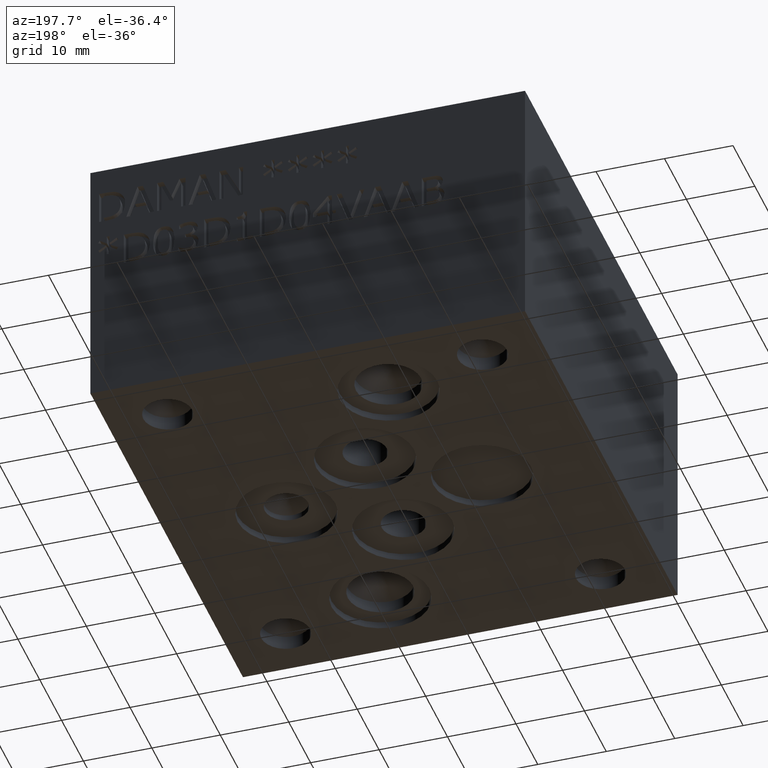
[diagram: clean part render]
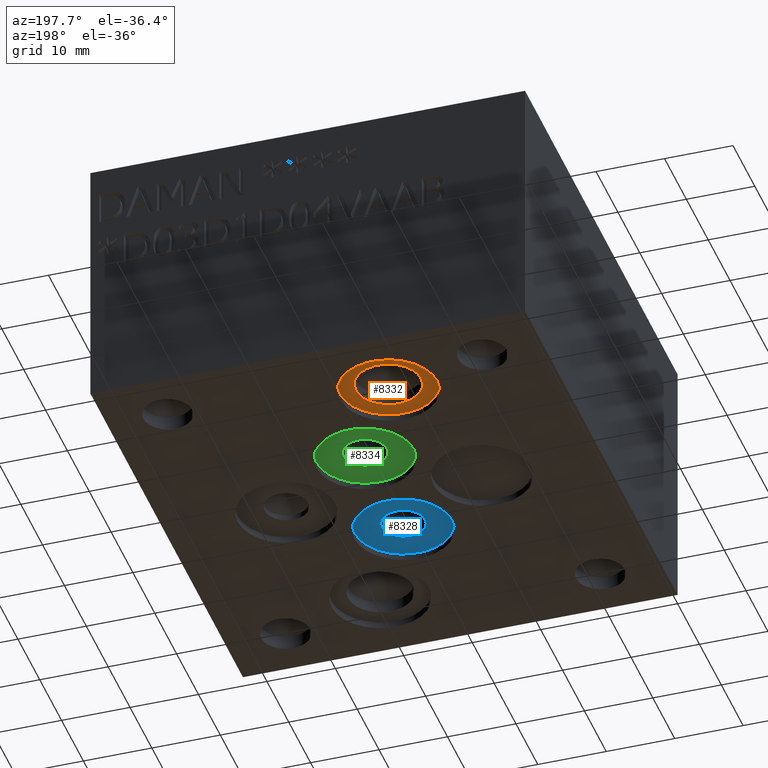
[diagram: same view with three faces highlighted in distinct colors, each labeled with its STEP entity id]
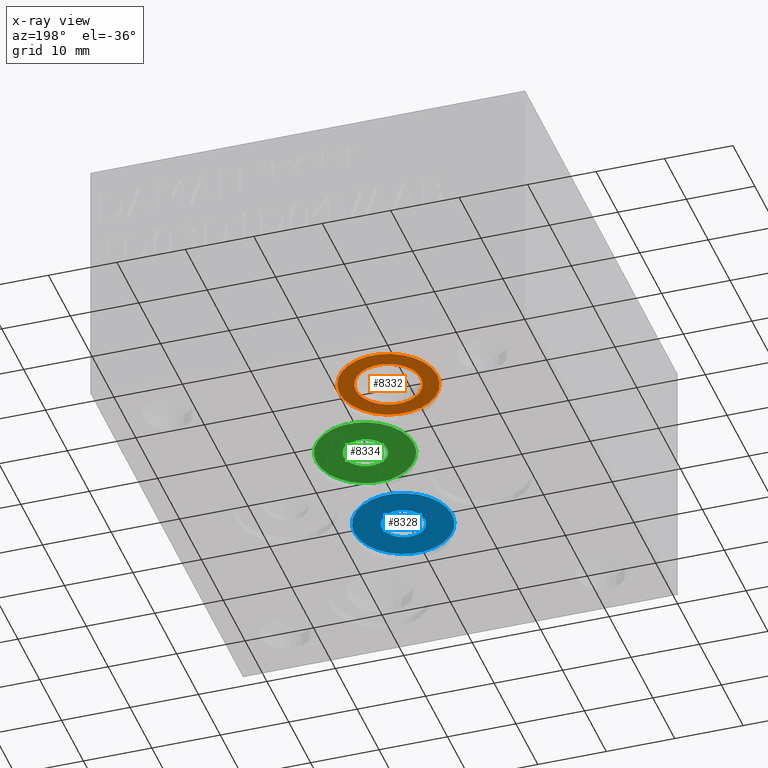
[diagram: x-ray of the same camera — body ghosted, the three highlighted faces saturated]
A machine part, auxiliary view with three faces highlighted in distinct colors.
The next image is the same camera in x-ray (body ghosted, the three faces saturated) — at least one of them is partly hidden behind the body in this view.
Their STEP definitions:

[orange] entity #8332 — the highlighted planar face has unit normal (0, 0, -1).
#44=CIRCLE('',#8693,7.1374);
#45=CIRCLE('',#8694,7.1374);
#46=CIRCLE('',#8696,4.7625);
#495=FACE_BOUND('',#1349,.T.);
#887=FACE_OUTER_BOUND('',#1348,.T.);
#1348=EDGE_LOOP('',(#7001,#7002));
#1349=EDGE_LOOP('',(#7003));
#3785=VERTEX_POINT('',#13788);
#3786=VERTEX_POINT('',#13790);
#3787=VERTEX_POINT('',#13794);
#4894=EDGE_CURVE('',#3786,#3785,#44,.T.);
#4895=EDGE_CURVE('',#3785,#3786,#45,.T.);
#4896=EDGE_CURVE('',#3787,#3787,#46,.T.);
#7001=ORIENTED_EDGE('',*,*,#4894,.T.);
#7002=ORIENTED_EDGE('',*,*,#4895,.T.);
#7003=ORIENTED_EDGE('',*,*,#4896,.F.);
#7615=PLANE('',#8695);
#8332=ADVANCED_FACE('',(#887,#495),#7615,.T.);
#8693=AXIS2_PLACEMENT_3D('',#13791,#10217,#10218);
#8694=AXIS2_PLACEMENT_3D('',#13792,#10219,#10220);
#8695=AXIS2_PLACEMENT_3D('',#13793,#10221,#10222);
#8696=AXIS2_PLACEMENT_3D('',#13795,#10223,#10224);
#10217=DIRECTION('center_axis',(0.,0.,-1.));
#10218=DIRECTION('ref_axis',(1.,0.,0.));
#10219=DIRECTION('center_axis',(0.,0.,-1.));
#10220=DIRECTION('ref_axis',(1.,0.,0.));
#10221=DIRECTION('center_axis',(0.,0.,-1.));
#10222=DIRECTION('ref_axis',(1.,0.,0.));
#10223=DIRECTION('center_axis',(0.,0.,-1.));
#10224=DIRECTION('ref_axis',(1.,0.,0.));
#13788=CARTESIAN_POINT('',(16.6116,57.9628,1.016));
#13790=CARTESIAN_POINT('',(30.8864,57.9628,1.016));
#13791=CARTESIAN_POINT('Origin',(23.749,57.9628,1.016));
#13792=CARTESIAN_POINT('Origin',(23.749,57.9628,1.016));
#13793=CARTESIAN_POINT('Origin',(23.749,57.9628,1.016));
#13794=CARTESIAN_POINT('',(18.9865,57.9628,1.016));
#13795=CARTESIAN_POINT('Origin',(23.749,57.9628,1.016));

[blue] entity #8328 — the highlighted planar face has unit normal (0, 0, -1).
#34=CIRCLE('',#8679,7.1374);
#35=CIRCLE('',#8680,7.1374);
#36=CIRCLE('',#8682,3.175);
#493=FACE_BOUND('',#1343,.T.);
#883=FACE_OUTER_BOUND('',#1342,.T.);
#1342=EDGE_LOOP('',(#6983,#6984));
#1343=EDGE_LOOP('',(#6985));
#3775=VERTEX_POINT('',#13762);
#3776=VERTEX_POINT('',#13764);
#3777=VERTEX_POINT('',#13768);
#4882=EDGE_CURVE('',#3776,#3775,#34,.T.);
#4883=EDGE_CURVE('',#3775,#3776,#35,.T.);
#4884=EDGE_CURVE('',#3777,#3777,#36,.T.);
#6983=ORIENTED_EDGE('',*,*,#4882,.T.);
#6984=ORIENTED_EDGE('',*,*,#4883,.T.);
#6985=ORIENTED_EDGE('',*,*,#4884,.F.);
#7613=PLANE('',#8681);
#8328=ADVANCED_FACE('',(#883,#493),#7613,.T.);
#8679=AXIS2_PLACEMENT_3D('',#13765,#10187,#10188);
#8680=AXIS2_PLACEMENT_3D('',#13766,#10189,#10190);
#8681=AXIS2_PLACEMENT_3D('',#13767,#10191,#10192);
#8682=AXIS2_PLACEMENT_3D('',#13769,#10193,#10194);
#10187=DIRECTION('center_axis',(0.,0.,-1.));
#10188=DIRECTION('ref_axis',(1.,0.,0.));
#10189=DIRECTION('center_axis',(0.,0.,-1.));
#10190=DIRECTION('ref_axis',(1.,0.,0.));
#10191=DIRECTION('center_axis',(0.,0.,-1.));
#10192=DIRECTION('ref_axis',(1.,0.,0.));
#10193=DIRECTION('center_axis',(0.,0.,-1.));
#10194=DIRECTION('ref_axis',(1.,0.,0.));
#13762=CARTESIAN_POINT('',(24.5872,26.2128,1.016));
#13764=CARTESIAN_POINT('',(38.862,26.2128,1.016));
#13765=CARTESIAN_POINT('Origin',(31.7246,26.2128,1.016));
#13766=CARTESIAN_POINT('Origin',(31.7246,26.2128,1.016));
#13767=CARTESIAN_POINT('Origin',(31.7246,26.2128,1.016));
#13768=CARTESIAN_POINT('',(28.5242,26.1874,1.016));
#13769=CARTESIAN_POINT('Origin',(31.6992,26.1874,1.016));

[green] entity #8334 — the highlighted planar face has unit normal (0, 0, -1).
#49=CIRCLE('',#8700,7.1374);
#50=CIRCLE('',#8701,7.1374);
#51=CIRCLE('',#8703,3.175);
#496=FACE_BOUND('',#1352,.T.);
#889=FACE_OUTER_BOUND('',#1351,.T.);
#1351=EDGE_LOOP('',(#7010,#7011));
#1352=EDGE_LOOP('',(#7012));
#3790=VERTEX_POINT('',#13801);
#3791=VERTEX_POINT('',#13803);
#3792=VERTEX_POINT('',#13807);
#4900=EDGE_CURVE('',#3791,#3790,#49,.T.);
#4901=EDGE_CURVE('',#3790,#3791,#50,.T.);
#4902=EDGE_CURVE('',#3792,#3792,#51,.T.);
#7010=ORIENTED_EDGE('',*,*,#4900,.T.);
#7011=ORIENTED_EDGE('',*,*,#4901,.T.);
#7012=ORIENTED_EDGE('',*,*,#4902,.F.);
#7616=PLANE('',#8702);
#8334=ADVANCED_FACE('',(#889,#496),#7616,.T.);
#8700=AXIS2_PLACEMENT_3D('',#13804,#10232,#10233);
#8701=AXIS2_PLACEMENT_3D('',#13805,#10234,#10235);
#8702=AXIS2_PLACEMENT_3D('',#13806,#10236,#10237);
#8703=AXIS2_PLACEMENT_3D('',#13808,#10238,#10239);
#10232=DIRECTION('center_axis',(0.,0.,-1.));
#10233=DIRECTION('ref_axis',(1.,0.,0.));
#10234=DIRECTION('center_axis',(0.,0.,-1.));
#10235=DIRECTION('ref_axis',(1.,0.,0.));
#10236=DIRECTION('center_axis',(0.,0.,-1.));
#10237=DIRECTION('ref_axis',(1.,0.,0.));
#10238=DIRECTION('center_axis',(0.,0.,-1.));
#10239=DIRECTION('ref_axis',(1.,0.,0.));
#13801=CARTESIAN_POINT('',(24.5872,43.6626,1.016));
#13803=CARTESIAN_POINT('',(38.862,43.6626,1.016));
#13804=CARTESIAN_POINT('Origin',(31.7246,43.6626,1.016));
#13805=CARTESIAN_POINT('Origin',(31.7246,43.6626,1.016));
#13806=CARTESIAN_POINT('Origin',(31.7246,43.6626,1.016));
#13807=CARTESIAN_POINT('',(28.5242,43.6626,1.016));
#13808=CARTESIAN_POINT('Origin',(31.6992,43.6626,1.016));